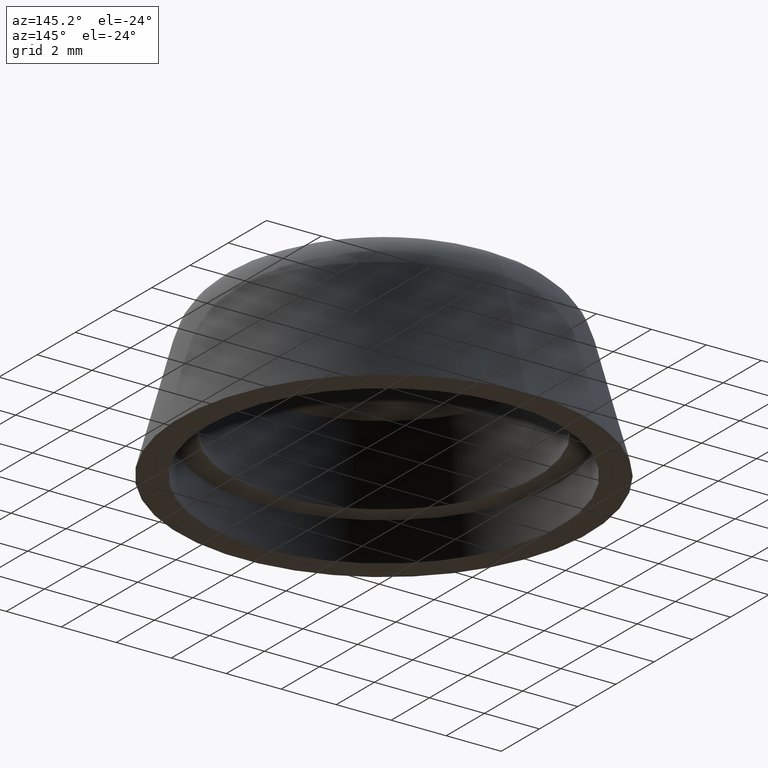
[diagram: clean part render]
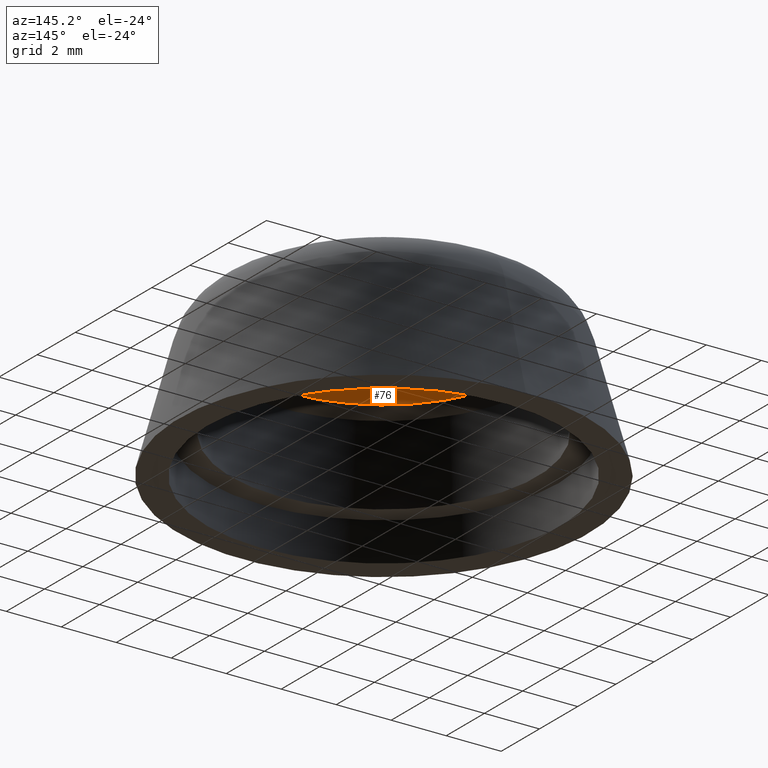
[diagram: same view with one face highlighted and labeled with its STEP entity id]
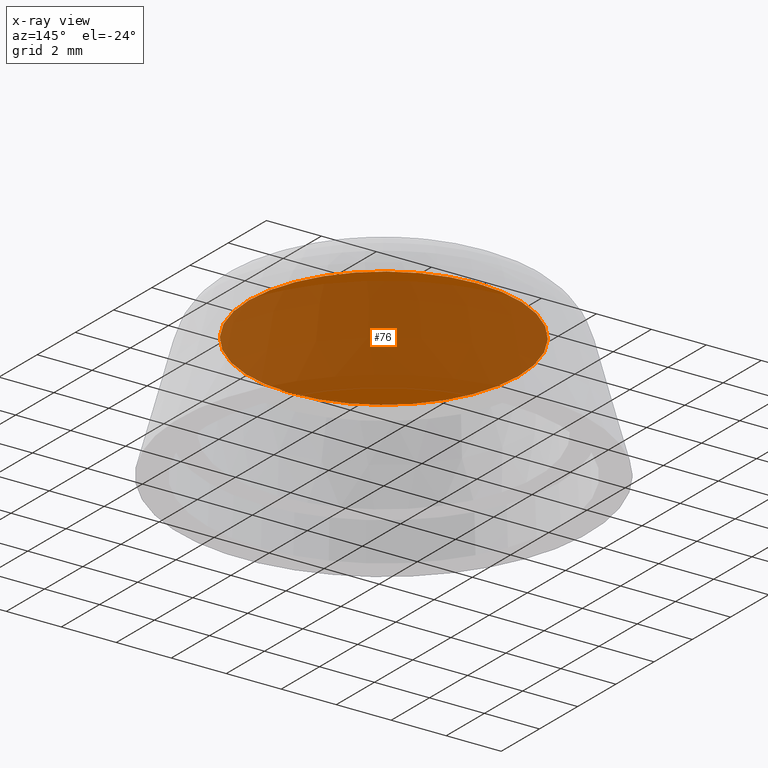
[diagram: x-ray of the same camera — body ghosted, the highlighted face saturated]
A machine part, auxiliary view. The second image highlights one B-rep face of the part: STEP entity #76.
The next image is the same camera in x-ray: the body ghosted, the highlighted face saturated — about 89% of this face is hidden behind the body in this view.
In plain terms, the highlighted planar face has unit normal (0, -0, -1).
Its self-contained STEP definition (entity closure, byte-faithful):
#76 = ADVANCED_FACE( '', ( #88 ), #89, .T. );
#88 = FACE_OUTER_BOUND( '', #148, .T. );
#89 = PLANE( '', #149 );
#148 = EDGE_LOOP( '', ( #173 ) );
#149 = AXIS2_PLACEMENT_3D( '', #174, #175, #176 );
#173 = ORIENTED_EDGE( '', *, *, #214, .T. );
#174 = CARTESIAN_POINT( '', ( 0.000000000000000, -9.54872784226559E-032, 4.50000000000000 ) );
#175 = DIRECTION( '', ( 0.000000000000000, -6.12303176911189E-017, -1.00000000000000 ) );
#176 = DIRECTION( '', ( 0.000000000000000, 1.00000000000000, -6.12303176911189E-017 ) );
#214 = EDGE_CURVE( '', #223, #223, #224, .T. );
#223 = VERTEX_POINT( '', #239 );
#224 = CIRCLE( '', #240, 4.89999999999998 );
#239 = CARTESIAN_POINT( '', ( 0.000000000000000, 4.89999999999998, 4.50000000000000 ) );
#240 = AXIS2_PLACEMENT_3D( '', #256, #257, #258 );
#256 = CARTESIAN_POINT( '', ( 0.000000000000000, -1.83708438423211E-032, 4.50000000000000 ) );
#257 = DIRECTION( '', ( 0.000000000000000, -6.12303176911189E-017, -1.00000000000000 ) );
#258 = DIRECTION( '', ( 0.000000000000000, 1.00000000000000, -6.12303176911189E-017 ) );